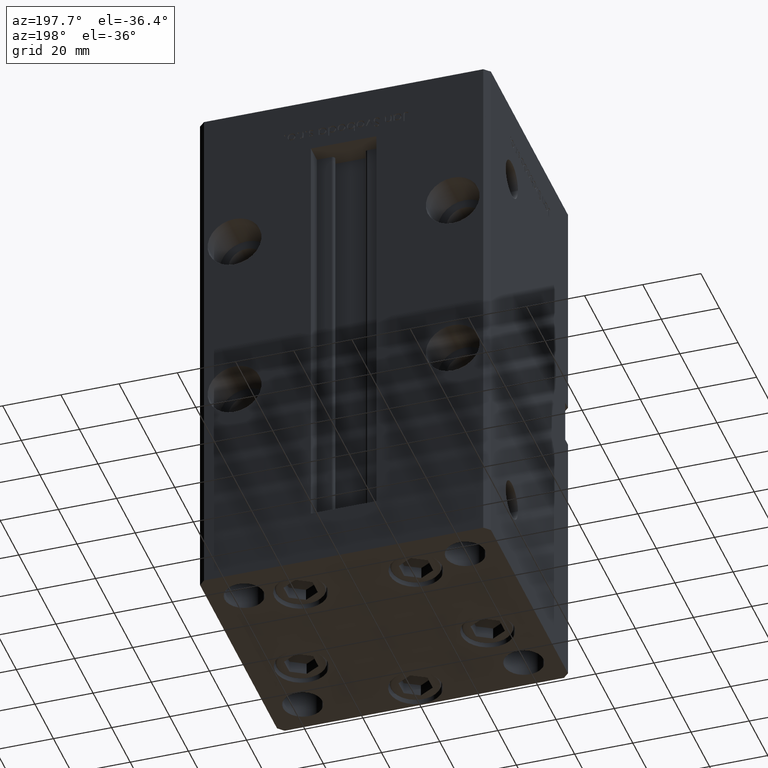
[diagram: clean part render]
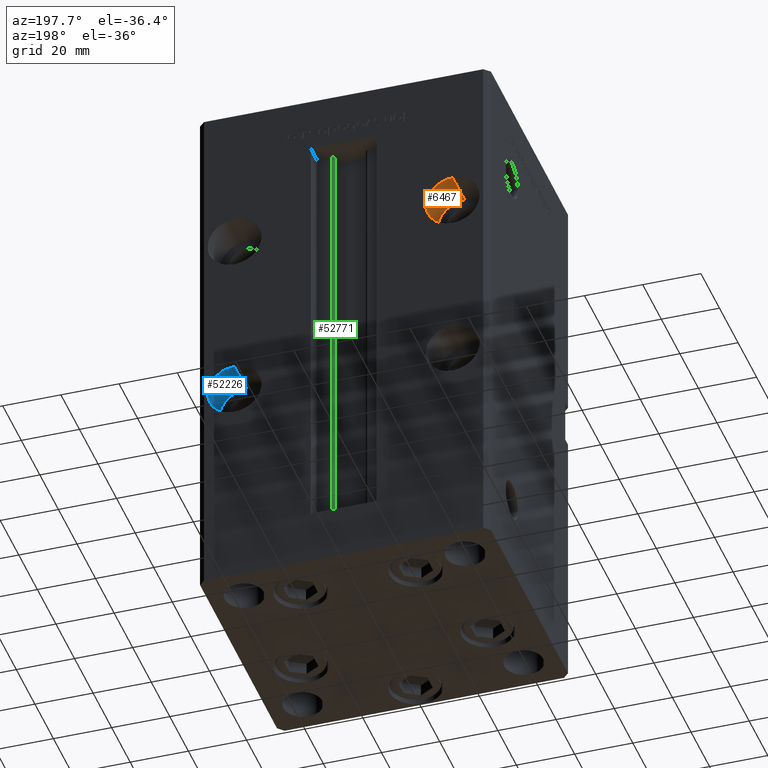
[diagram: same view with three faces highlighted in distinct colors, each labeled with its STEP entity id]
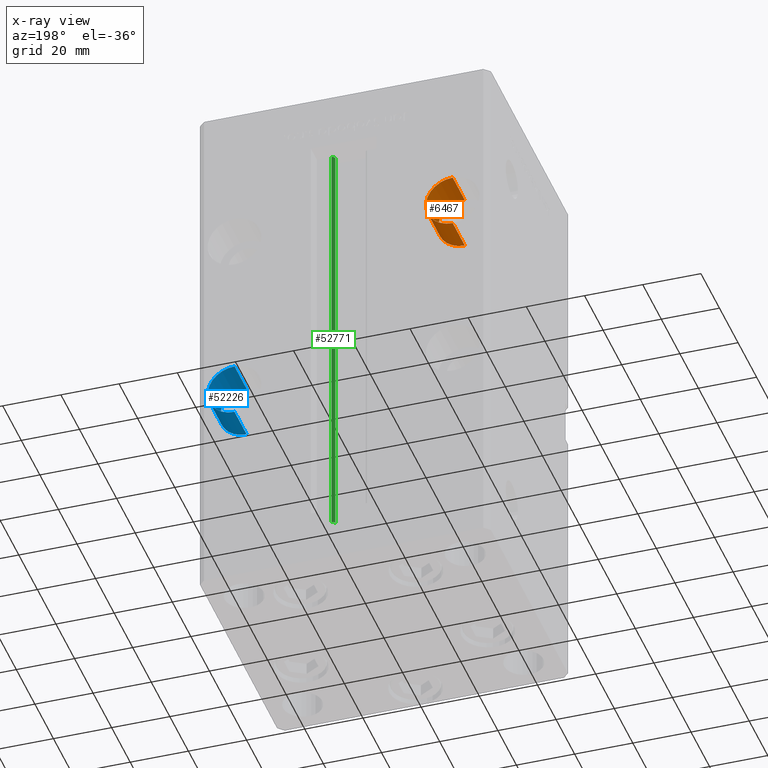
[diagram: x-ray of the same camera — body ghosted, the three highlighted faces saturated]
A machine part, auxiliary view with three faces highlighted in distinct colors.
The next image is the same camera in x-ray (body ghosted, the three faces saturated) — at least one of them is partly hidden behind the body in this view.
Their STEP definitions:

[orange] entity #6467 — the highlighted cylindrical surface (edge-blend (fillet) strip) has radius 9.25 mm, axis along (0, 1, 0).
#314 = CARTESIAN_POINT ( 'NONE',  ( -37.50000000000000000, 30.50000000000000000, 125.7500000000000000 ) ) ;
#1246 = LINE ( 'NONE', #50414, #18699 ) ;
#1619 = DIRECTION ( 'NONE',  ( 0.000000000000000000, 0.000000000000000000, -1.000000000000000000 ) ) ;
#1923 = DIRECTION ( 'NONE',  ( 0.000000000000000000, 0.000000000000000000, 1.000000000000000000 ) ) ;
#3356 = DIRECTION ( 'NONE',  ( 0.000000000000000000, 1.000000000000000000, -0.000000000000000000 ) ) ;
#6467 = ADVANCED_FACE ( 'NONE', ( #50034 ), #51882, .F. ) ;
#6967 = CARTESIAN_POINT ( 'NONE',  ( -37.50000000000000000, 43.50000000000000000, 107.2499999999999858 ) ) ;
#8482 = AXIS2_PLACEMENT_3D ( 'NONE', #27452, #34707, #1923 ) ;
#11156 = DIRECTION ( 'NONE',  ( 0.000000000000000000, 0.000000000000000000, -1.000000000000000000 ) ) ;
#12744 = VECTOR ( 'NONE', #33455, 1000.000000000000000 ) ;
#16066 = VERTEX_POINT ( 'NONE', #314 ) ;
#16355 = VERTEX_POINT ( 'NONE', #6967 ) ;
#16493 = VERTEX_POINT ( 'NONE', #52656 ) ;
#18699 = VECTOR ( 'NONE', #37807, 1000.000000000000000 ) ;
#19377 = ORIENTED_EDGE ( 'NONE', *, *, #46768, .T. ) ;
#20895 = EDGE_CURVE ( 'NONE', #16066, #49743, #50885, .T. ) ;
#27024 = EDGE_LOOP ( 'NONE', ( #37190, #33119, #19377, #34466 ) ) ;
#27452 = CARTESIAN_POINT ( 'NONE',  ( -37.50000000000000000, 30.50000000000000000, 116.4999999999999858 ) ) ;
#29431 = LINE ( 'NONE', #45801, #12744 ) ;
#31178 = CARTESIAN_POINT ( 'NONE',  ( -37.50000000000000000, 43.50000000000000000, 116.4999999999999858 ) ) ;
#33119 = ORIENTED_EDGE ( 'NONE', *, *, #20895, .F. ) ;
#33455 = DIRECTION ( 'NONE',  ( -0.000000000000000000, 1.000000000000000000, -0.000000000000000000 ) ) ;
#33565 = EDGE_CURVE ( 'NONE', #16493, #16355, #40882, .T. ) ;
#34466 = ORIENTED_EDGE ( 'NONE', *, *, #33565, .T. ) ;
#34707 = DIRECTION ( 'NONE',  ( -0.000000000000000000, 1.000000000000000000, -0.000000000000000000 ) ) ;
#36326 = AXIS2_PLACEMENT_3D ( 'NONE', #48771, #3356, #11156 ) ;
#37190 = ORIENTED_EDGE ( 'NONE', *, *, #43618, .F. ) ;
#37807 = DIRECTION ( 'NONE',  ( -0.000000000000000000, 1.000000000000000000, -0.000000000000000000 ) ) ;
#40882 = CIRCLE ( 'NONE', #50305, 9.250000000000008882 ) ;
#43276 = CARTESIAN_POINT ( 'NONE',  ( -37.50000000000000000, 30.50000000000000000, 107.2499999999999858 ) ) ;
#43618 = EDGE_CURVE ( 'NONE', #49743, #16355, #1246, .T. ) ;
#45801 = CARTESIAN_POINT ( 'NONE',  ( -37.50000000000000000, 30.50000000000000000, 125.7500000000000000 ) ) ;
#46768 = EDGE_CURVE ( 'NONE', #16066, #16493, #29431, .T. ) ;
#48771 = CARTESIAN_POINT ( 'NONE',  ( -37.50000000000000000, 30.50000000000000000, 116.4999999999999858 ) ) ;
#49743 = VERTEX_POINT ( 'NONE', #43276 ) ;
#50034 = FACE_OUTER_BOUND ( 'NONE', #27024, .T. ) ;
#50305 = AXIS2_PLACEMENT_3D ( 'NONE', #31178, #50528, #1619 ) ;
#50414 = CARTESIAN_POINT ( 'NONE',  ( -37.50000000000000000, 30.50000000000000000, 107.2499999999999858 ) ) ;
#50528 = DIRECTION ( 'NONE',  ( 0.000000000000000000, 1.000000000000000000, -0.000000000000000000 ) ) ;
#50885 = CIRCLE ( 'NONE', #36326, 9.250000000000008882 ) ;
#51882 = CYLINDRICAL_SURFACE ( 'NONE', #8482, 9.250000000000008882 ) ;
#52656 = CARTESIAN_POINT ( 'NONE',  ( -37.50000000000000000, 43.50000000000000000, 125.7500000000000000 ) ) ;

[blue] entity #52226 — the highlighted cylindrical surface (edge-blend (fillet) strip) has radius 9.25 mm, axis along (0, 1, 0).
#2916 = VERTEX_POINT ( 'NONE', #8826 ) ;
#8826 = CARTESIAN_POINT ( 'NONE',  ( 37.50000000000000000, 43.50000000000000000, 47.24999999999998579 ) ) ;
#9678 = DIRECTION ( 'NONE',  ( -0.000000000000000000, 1.000000000000000000, -0.000000000000000000 ) ) ;
#10158 = CIRCLE ( 'NONE', #17044, 9.250000000000001776 ) ;
#10511 = ORIENTED_EDGE ( 'NONE', *, *, #47611, .T. ) ;
#11074 = AXIS2_PLACEMENT_3D ( 'NONE', #24693, #17403, #13357 ) ;
#13357 = DIRECTION ( 'NONE',  ( 0.000000000000000000, 0.000000000000000000, 1.000000000000000000 ) ) ;
#16231 = EDGE_CURVE ( 'NONE', #42142, #37226, #46239, .T. ) ;
#16469 = EDGE_LOOP ( 'NONE', ( #40873, #22824, #35770, #10511 ) ) ;
#17044 = AXIS2_PLACEMENT_3D ( 'NONE', #21804, #29346, #28821 ) ;
#17403 = DIRECTION ( 'NONE',  ( -0.000000000000000000, 1.000000000000000000, -0.000000000000000000 ) ) ;
#18226 = EDGE_CURVE ( 'NONE', #42142, #44159, #31071, .T. ) ;
#18779 = LINE ( 'NONE', #51018, #49546 ) ;
#21176 = CYLINDRICAL_SURFACE ( 'NONE', #11074, 9.250000000000001776 ) ;
#21650 = AXIS2_PLACEMENT_3D ( 'NONE', #35515, #52162, #39279 ) ;
#21804 = CARTESIAN_POINT ( 'NONE',  ( 37.50000000000000000, 43.50000000000000000, 56.49999999999998579 ) ) ;
#22723 = CARTESIAN_POINT ( 'NONE',  ( 37.50000000000000000, 30.50000000000000000, 65.74999999999998579 ) ) ;
#22824 = ORIENTED_EDGE ( 'NONE', *, *, #18226, .F. ) ;
#22853 = CARTESIAN_POINT ( 'NONE',  ( 37.50000000000000000, 30.50000000000000000, 65.74999999999998579 ) ) ;
#24434 = FACE_OUTER_BOUND ( 'NONE', #16469, .T. ) ;
#24693 = CARTESIAN_POINT ( 'NONE',  ( 37.50000000000000000, 30.50000000000000000, 56.49999999999998579 ) ) ;
#25079 = CARTESIAN_POINT ( 'NONE',  ( 37.50000000000000000, 30.50000000000000000, 47.24999999999998579 ) ) ;
#26851 = DIRECTION ( 'NONE',  ( -0.000000000000000000, 1.000000000000000000, -0.000000000000000000 ) ) ;
#28821 = DIRECTION ( 'NONE',  ( 0.000000000000000000, 0.000000000000000000, -1.000000000000000000 ) ) ;
#29346 = DIRECTION ( 'NONE',  ( 0.000000000000000000, 1.000000000000000000, -0.000000000000000000 ) ) ;
#30163 = VECTOR ( 'NONE', #9678, 1000.000000000000000 ) ;
#31071 = CIRCLE ( 'NONE', #21650, 9.250000000000001776 ) ;
#34228 = CARTESIAN_POINT ( 'NONE',  ( 37.50000000000000000, 43.50000000000000000, 65.74999999999998579 ) ) ;
#35515 = CARTESIAN_POINT ( 'NONE',  ( 37.50000000000000000, 30.50000000000000000, 56.49999999999998579 ) ) ;
#35770 = ORIENTED_EDGE ( 'NONE', *, *, #16231, .T. ) ;
#37226 = VERTEX_POINT ( 'NONE', #34228 ) ;
#38467 = EDGE_CURVE ( 'NONE', #44159, #2916, #18779, .T. ) ;
#39279 = DIRECTION ( 'NONE',  ( 0.000000000000000000, 0.000000000000000000, -1.000000000000000000 ) ) ;
#40873 = ORIENTED_EDGE ( 'NONE', *, *, #38467, .F. ) ;
#42142 = VERTEX_POINT ( 'NONE', #22723 ) ;
#44159 = VERTEX_POINT ( 'NONE', #25079 ) ;
#46239 = LINE ( 'NONE', #22853, #30163 ) ;
#47611 = EDGE_CURVE ( 'NONE', #37226, #2916, #10158, .T. ) ;
#49546 = VECTOR ( 'NONE', #26851, 1000.000000000000000 ) ;
#51018 = CARTESIAN_POINT ( 'NONE',  ( 37.50000000000000000, 30.50000000000000000, 47.24999999999998579 ) ) ;
#52162 = DIRECTION ( 'NONE',  ( 0.000000000000000000, 1.000000000000000000, -0.000000000000000000 ) ) ;
#52226 = ADVANCED_FACE ( 'NONE', ( #24434 ), #21176, .F. ) ;

[green] entity #52771 — the highlighted cylindrical surface (edge-blend (fillet) strip) has radius 0.9333 mm, axis along (0, 0, 1).
#387 = DIRECTION ( 'NONE',  ( 1.000000000000000000, 0.000000000000000000, 0.000000000000000000 ) ) ;
#511 = VECTOR ( 'NONE', #36941, 1000.000000000000000 ) ;
#4532 = VERTEX_POINT ( 'NONE', #46914 ) ;
#7616 = DIRECTION ( 'NONE',  ( 1.000000000000000000, 0.000000000000000000, 0.000000000000000000 ) ) ;
#8018 = EDGE_CURVE ( 'NONE', #29839, #4532, #31354, .T. ) ;
#8714 = EDGE_LOOP ( 'NONE', ( #14694, #33027, #25131, #29031 ) ) ;
#13877 = CARTESIAN_POINT ( 'NONE',  ( 5.375042956467944499, 35.59999999999899245, 0.000000000000000000 ) ) ;
#14694 = ORIENTED_EDGE ( 'NONE', *, *, #34088, .F. ) ;
#16497 = CYLINDRICAL_SURFACE ( 'NONE', #23963, 0.9333333333339999260 ) ;
#18454 = EDGE_CURVE ( 'NONE', #29839, #37212, #30244, .T. ) ;
#20800 = FACE_OUTER_BOUND ( 'NONE', #8714, .T. ) ;
#22264 = VECTOR ( 'NONE', #30312, 1000.000000000000000 ) ;
#23034 = CARTESIAN_POINT ( 'NONE',  ( 5.375042956467944499, 35.59999999999899245, 0.000000000000000000 ) ) ;
#23540 = AXIS2_PLACEMENT_3D ( 'NONE', #32932, #36418, #387 ) ;
#23963 = AXIS2_PLACEMENT_3D ( 'NONE', #52761, #44704, #7616 ) ;
#25131 = ORIENTED_EDGE ( 'NONE', *, *, #8018, .T. ) ;
#27904 = CARTESIAN_POINT ( 'NONE',  ( 6.183333333333996151, 37.00000000000000000, 148.5000000000000000 ) ) ;
#28622 = CARTESIAN_POINT ( 'NONE',  ( 6.183333333333996151, 37.00000000000000000, 0.000000000000000000 ) ) ;
#29031 = ORIENTED_EDGE ( 'NONE', *, *, #29088, .T. ) ;
#29088 = EDGE_CURVE ( 'NONE', #4532, #51384, #44996, .T. ) ;
#29839 = VERTEX_POINT ( 'NONE', #13877 ) ;
#30244 = CIRCLE ( 'NONE', #31959, 0.9333333333339999260 ) ;
#30312 = DIRECTION ( 'NONE',  ( -0.000000000000000000, -0.000000000000000000, 1.000000000000000000 ) ) ;
#30468 = CARTESIAN_POINT ( 'NONE',  ( 6.183333333333996151, 37.00000000000000000, 0.000000000000000000 ) ) ;
#30644 = DIRECTION ( 'NONE',  ( -0.000000000000000000, -0.000000000000000000, -1.000000000000000000 ) ) ;
#31354 = LINE ( 'NONE', #23034, #22264 ) ;
#31959 = AXIS2_PLACEMENT_3D ( 'NONE', #45950, #30644, #47007 ) ;
#32932 = CARTESIAN_POINT ( 'NONE',  ( 6.183333333333996151, 36.06666666666599497, 148.5000000000000000 ) ) ;
#33027 = ORIENTED_EDGE ( 'NONE', *, *, #18454, .F. ) ;
#34088 = EDGE_CURVE ( 'NONE', #37212, #51384, #37452, .T. ) ;
#36418 = DIRECTION ( 'NONE',  ( 0.000000000000000000, 0.000000000000000000, -1.000000000000000000 ) ) ;
#36941 = DIRECTION ( 'NONE',  ( -0.000000000000000000, -0.000000000000000000, 1.000000000000000000 ) ) ;
#37212 = VERTEX_POINT ( 'NONE', #30468 ) ;
#37452 = LINE ( 'NONE', #28622, #511 ) ;
#44704 = DIRECTION ( 'NONE',  ( -0.000000000000000000, -0.000000000000000000, 1.000000000000000000 ) ) ;
#44996 = CIRCLE ( 'NONE', #23540, 0.9333333333339999260 ) ;
#45950 = CARTESIAN_POINT ( 'NONE',  ( 6.183333333333996151, 36.06666666666599497, 0.000000000000000000 ) ) ;
#46914 = CARTESIAN_POINT ( 'NONE',  ( 5.375042956467946276, 35.59999999999899245, 148.5000000000000000 ) ) ;
#47007 = DIRECTION ( 'NONE',  ( 1.000000000000000000, 0.000000000000000000, 0.000000000000000000 ) ) ;
#51384 = VERTEX_POINT ( 'NONE', #27904 ) ;
#52761 = CARTESIAN_POINT ( 'NONE',  ( 6.183333333333996151, 36.06666666666599497, 0.000000000000000000 ) ) ;
#52771 = ADVANCED_FACE ( 'NONE', ( #20800 ), #16497, .T. ) ;